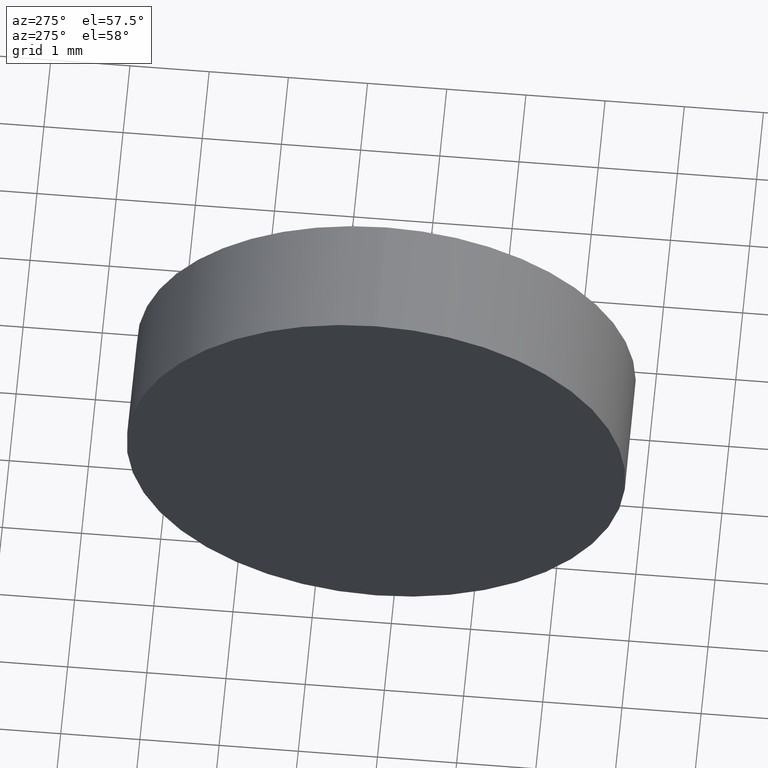
[diagram: clean part render]
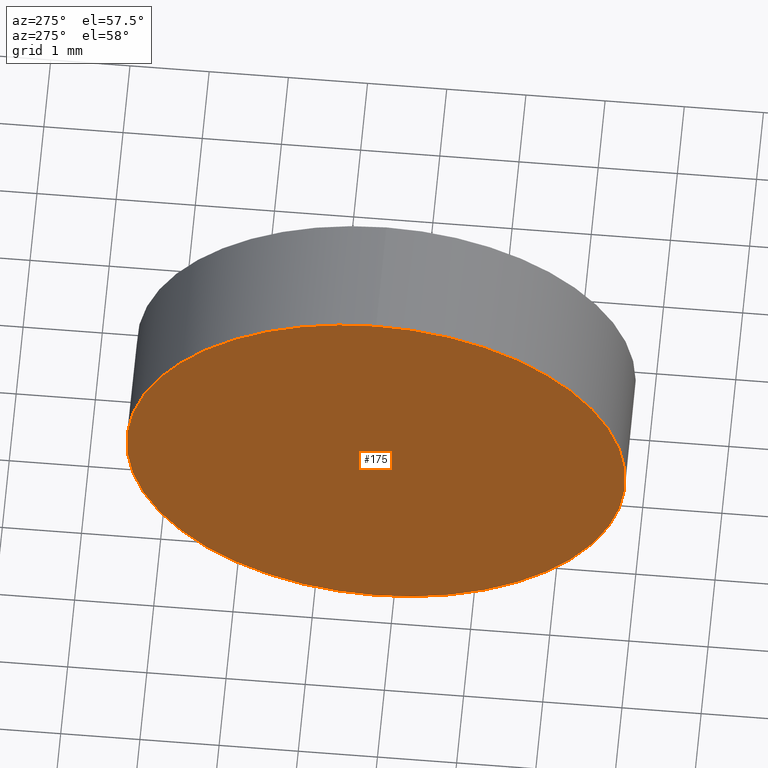
[diagram: same view with one face highlighted and labeled with its STEP entity id]
A machine part, auxiliary view. The second image highlights one B-rep face of the part: STEP entity #175.
In plain terms, the highlighted planar face has unit normal (1, 0, 0).
Its self-contained STEP definition (entity closure, byte-faithful):
#1 = PLANE ( 'NONE',  #147 ) ;
#9 = EDGE_CURVE ( 'NONE', #25, #182, #185, .T. ) ;
#20 = CARTESIAN_POINT ( 'NONE',  ( 532.3135078641275900, 77.22052637251874800, -3.149999999999999900 ) ) ;
#22 = CARTESIAN_POINT ( 'NONE',  ( 532.3135078641275900, 77.22052637251874800, 0.0000000000000000000 ) ) ;
#25 = VERTEX_POINT ( 'NONE', #111 ) ;
#27 = FACE_OUTER_BOUND ( 'NONE', #173, .T. ) ;
#42 = AXIS2_PLACEMENT_3D ( 'NONE', #83, #100, #70 ) ;
#47 = DIRECTION ( 'NONE',  ( 1.000000000000000000, 0.0000000000000000000, 0.0000000000000000000 ) ) ;
#63 = DIRECTION ( 'NONE',  ( 0.0000000000000000000, 0.0000000000000000000, 1.000000000000000000 ) ) ;
#70 = DIRECTION ( 'NONE',  ( 0.0000000000000000000, 0.0000000000000000000, 1.000000000000000000 ) ) ;
#74 = AXIS2_PLACEMENT_3D ( 'NONE', #168, #149, #63 ) ;
#83 = CARTESIAN_POINT ( 'NONE',  ( 532.3135078641275900, 77.22052637251874800, 0.0000000000000000000 ) ) ;
#100 = DIRECTION ( 'NONE',  ( -1.000000000000000000, -0.0000000000000000000, -0.0000000000000000000 ) ) ;
#111 = CARTESIAN_POINT ( 'NONE',  ( 532.3135078641275900, 77.22052637251874800, 3.149999999999999900 ) ) ;
#117 = CIRCLE ( 'NONE', #74, 3.149999999999999900 ) ;
#147 = AXIS2_PLACEMENT_3D ( 'NONE', #22, #47, #165 ) ;
#149 = DIRECTION ( 'NONE',  ( -1.000000000000000000, -0.0000000000000000000, -0.0000000000000000000 ) ) ;
#155 = ORIENTED_EDGE ( 'NONE', *, *, #172, .T. ) ;
#165 = DIRECTION ( 'NONE',  ( 0.0000000000000000000, 0.0000000000000000000, -1.000000000000000000 ) ) ;
#168 = CARTESIAN_POINT ( 'NONE',  ( 532.3135078641275900, 77.22052637251874800, 0.0000000000000000000 ) ) ;
#171 = ORIENTED_EDGE ( 'NONE', *, *, #9, .T. ) ;
#172 = EDGE_CURVE ( 'NONE', #182, #25, #117, .T. ) ;
#173 = EDGE_LOOP ( 'NONE', ( #171, #155 ) ) ;
#175 = ADVANCED_FACE ( 'NONE', ( #27 ), #1, .F. ) ;
#182 = VERTEX_POINT ( 'NONE', #20 ) ;
#185 = CIRCLE ( 'NONE', #42, 3.149999999999999900 ) ;